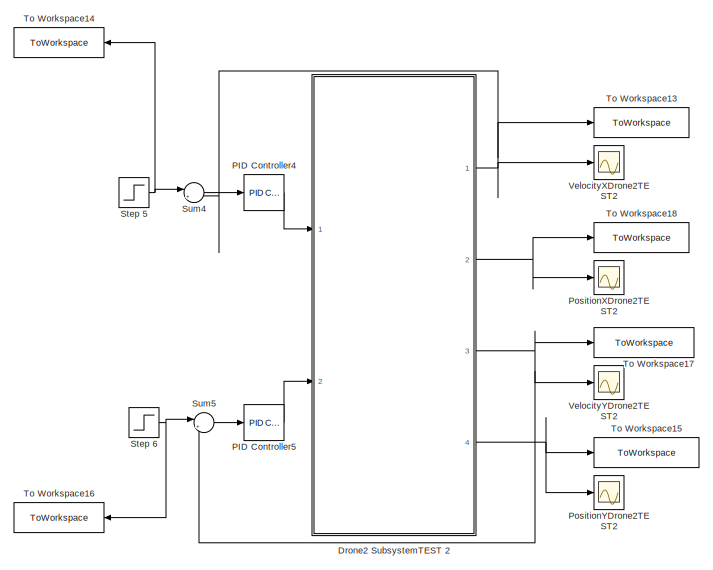
[diagram: root canvas - part 1/3, left side, full height]
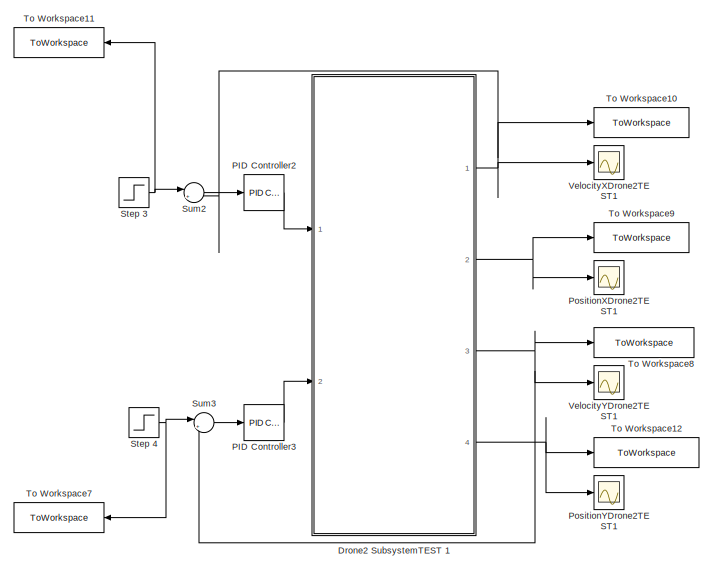
[diagram: root canvas - part 2/3, center side, full height]
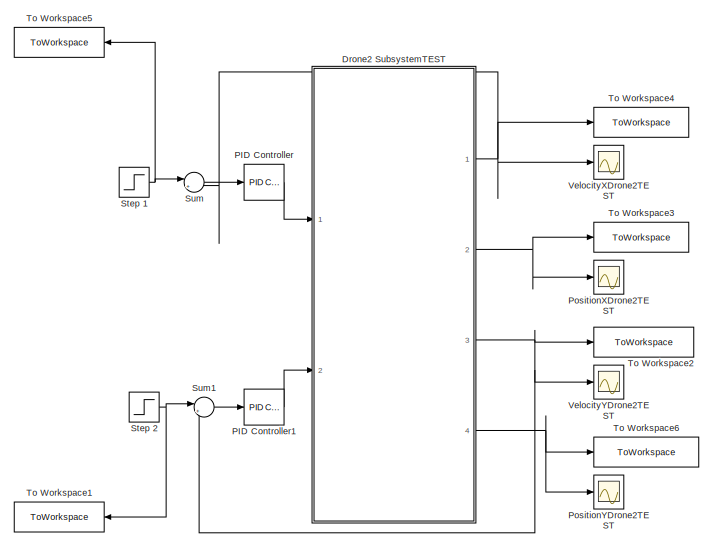
[diagram: root canvas - part 3/3, right side, full height]
MODEL slx_4471106a323d
KIND model
CONFIG AbsTol = auto
CONFIG EnableMultiTasking = off
CONFIG FixedStep = auto
CONFIG MaxStep = auto
CONFIG MinStep = auto
CONFIG RelTol = 1e-3
CONFIG SampleTimeConstraint = Unconstrained
CONFIG Solver = VariableStepAuto
CONFIG SolverName = VariableStepAuto
CONFIG StartTime = 0.0
CONFIG StopTime = 10
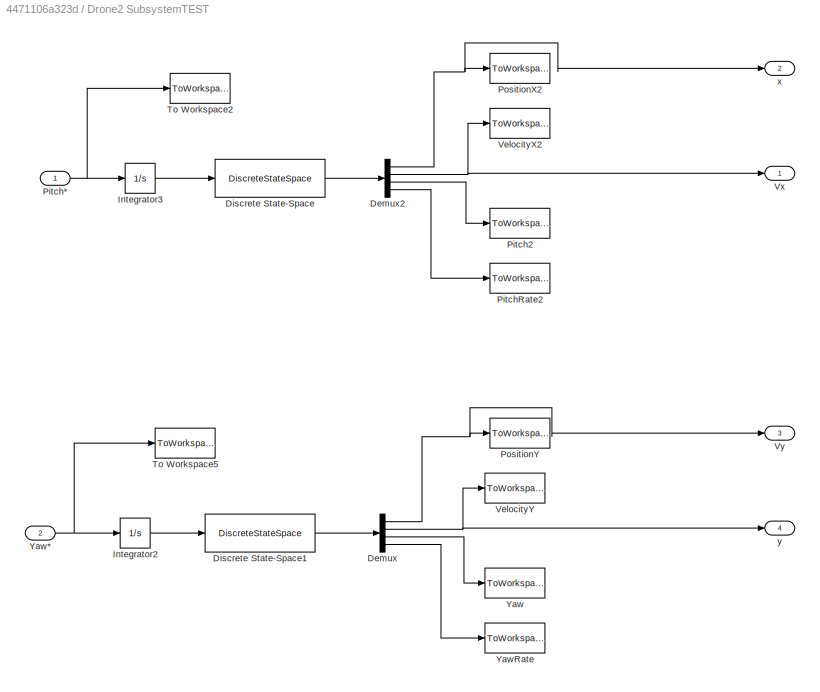
BLOCK [SubSystem] Drone2 SubsystemTEST 
  Commented = on
  Ports = [2, 4]
  RequestExecContextInheritance = off
BLOCK [Demux] Drone2 SubsystemTEST /Demux
  DisplayOption = bar
  Ports = [1, 4]
BLOCK [Demux] Drone2 SubsystemTEST /Demux2
  DisplayOption = bar
  Ports = [1, 4]
BLOCK [DiscreteStateSpace] Drone2 SubsystemTEST /Discrete State-Space
  A = Ax
  B = Bx
  C = Cvx
  D = Dx
  InitialCondition = x0
  SampleTime = Ts
BLOCK [DiscreteStateSpace] Drone2 SubsystemTEST /Discrete State-Space1
  A = Ay
  B = By
  C = Cvy
  D = Dy
  InitialCondition = y0
  SampleTime = Ts
BLOCK [Integrator] Drone2 SubsystemTEST /Integrator2
  Ports = [1, 1]
BLOCK [Integrator] Drone2 SubsystemTEST /Integrator3
  Ports = [1, 1]
BLOCK [Inport] Drone2 SubsystemTEST /Pitch*
  IconDisplay = Port number
BLOCK [ToWorkspace] Drone2 SubsystemTEST /Pitch2
  FixptAsFi = on
  MaxDataPoints = inf
  Ports = [1]
  SampleTime = -1
  Save2DSignal = 3-D array (concatenate along third dimension)
  VariableName = Theta1
BLOCK [ToWorkspace] Drone2 SubsystemTEST /PitchRate2
  FixptAsFi = on
  MaxDataPoints = inf
  Ports = [1]
  SampleTime = -1
  Save2DSignal = 3-D array (concatenate along third dimension)
  VariableName = ThetaDot1
BLOCK [ToWorkspace] Drone2 SubsystemTEST /PositionX2
  FixptAsFi = on
  MaxDataPoints = inf
  Ports = [1]
  SampleTime = -1
  Save2DSignal = 3-D array (concatenate along third dimension)
  VariableName = x
BLOCK [ToWorkspace] Drone2 SubsystemTEST /PositionY
  FixptAsFi = on
  MaxDataPoints = inf
  Ports = [1]
  SampleTime = -1
  Save2DSignal = 3-D array (concatenate along third dimension)
  VariableName = y
BLOCK [ToWorkspace] Drone2 SubsystemTEST /To Workspace2
  FixptAsFi = on
  MaxDataPoints = inf
  Ports = [1]
  SampleTime = -1
  Save2DSignal = 3-D array (concatenate along third dimension)
  VariableName = PitchReference
BLOCK [ToWorkspace] Drone2 SubsystemTEST /To Workspace5
  FixptAsFi = on
  MaxDataPoints = inf
  Ports = [1]
  SampleTime = -1
  Save2DSignal = 3-D array (concatenate along third dimension)
  VariableName = YawReference
BLOCK [ToWorkspace] Drone2 SubsystemTEST /VelocityX2
  FixptAsFi = on
  MaxDataPoints = inf
  Ports = [1]
  SampleTime = -1
  Save2DSignal = 3-D array (concatenate along third dimension)
  VariableName = vx
BLOCK [ToWorkspace] Drone2 SubsystemTEST /VelocityY
  FixptAsFi = on
  MaxDataPoints = inf
  Ports = [1]
  SampleTime = -1
  Save2DSignal = 3-D array (concatenate along third dimension)
  VariableName = vx
BLOCK [Outport] Drone2 SubsystemTEST /Vx
  IconDisplay = Port number
BLOCK [Outport] Drone2 SubsystemTEST /Vy
  IconDisplay = Port number
  Port = 3
BLOCK [ToWorkspace] Drone2 SubsystemTEST /Yaw
  FixptAsFi = on
  MaxDataPoints = inf
  Ports = [1]
  SampleTime = -1
  Save2DSignal = 3-D array (concatenate along third dimension)
  VariableName = Psi
BLOCK [Inport] Drone2 SubsystemTEST /Yaw* 
  IconDisplay = Port number
  Port = 2
BLOCK [ToWorkspace] Drone2 SubsystemTEST /YawRate
  FixptAsFi = on
  MaxDataPoints = inf
  Ports = [1]
  SampleTime = -1
  Save2DSignal = 3-D array (concatenate along third dimension)
  VariableName = PsiDot
BLOCK [Outport] Drone2 SubsystemTEST /x
  IconDisplay = Port number
  Port = 2
BLOCK [Outport] Drone2 SubsystemTEST /y
  IconDisplay = Port number
  Port = 4
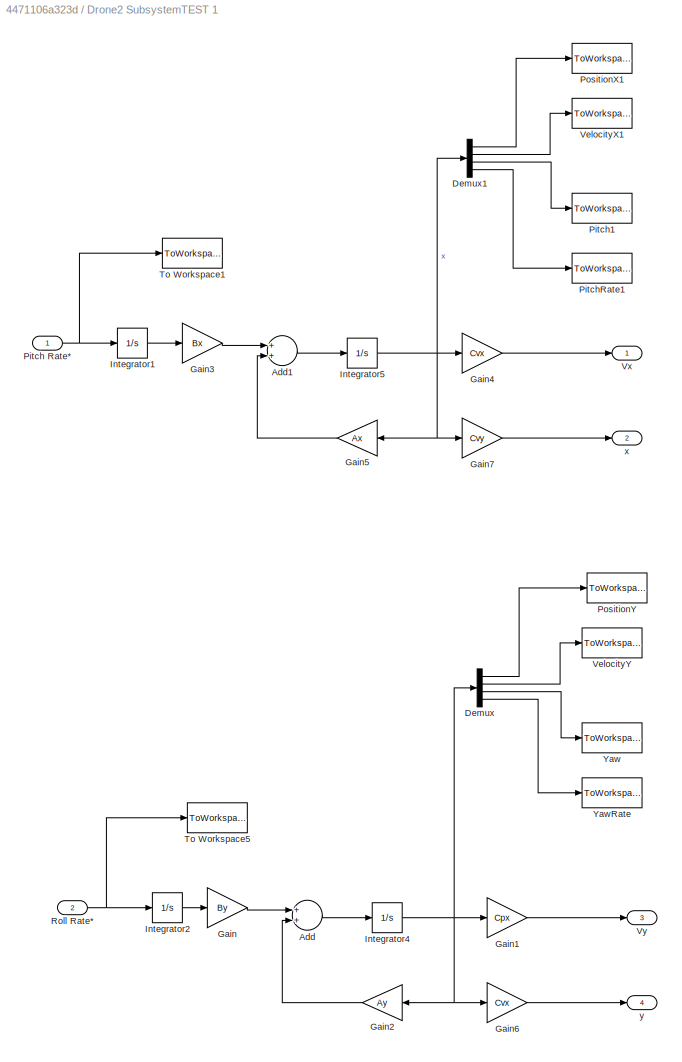
BLOCK [SubSystem] Drone2 SubsystemTEST 1
  Commented = on
  Ports = [2, 4]
  RequestExecContextInheritance = off
BLOCK [Sum] Drone2 SubsystemTEST 1/Add
  InputSameDT = off
  OutDataTypeStr = Inherit: Inherit via internal rule
  Ports = [2, 1]
  SaturateOnIntegerOverflow = off
BLOCK [Sum] Drone2 SubsystemTEST 1/Add1
  InputSameDT = off
  OutDataTypeStr = Inherit: Inherit via internal rule
  Ports = [2, 1]
  SaturateOnIntegerOverflow = off
BLOCK [Demux] Drone2 SubsystemTEST 1/Demux
  DisplayOption = bar
  Ports = [1, 4]
BLOCK [Demux] Drone2 SubsystemTEST 1/Demux1
  DisplayOption = bar
  Ports = [1, 4]
BLOCK [Gain] Drone2 SubsystemTEST 1/Gain
  Gain = By
  Multiplication = Matrix(K*u)
  OutDataTypeStr = Inherit: Inherit via internal rule
  ParamDataTypeStr = Inherit: Inherit via internal rule
  SaturateOnIntegerOverflow = off
BLOCK [Gain] Drone2 SubsystemTEST 1/Gain1
  Gain = Cpx
  Multiplication = Matrix(K*u)
  OutDataTypeStr = Inherit: Inherit via internal rule
  ParamDataTypeStr = Inherit: Inherit via internal rule
  SaturateOnIntegerOverflow = off
BLOCK [Gain] Drone2 SubsystemTEST 1/Gain2
  Gain = Ay
  Multiplication = Matrix(K*u)
  OutDataTypeStr = Inherit: Inherit via internal rule
  ParamDataTypeStr = Inherit: Inherit via internal rule
  SaturateOnIntegerOverflow = off
BLOCK [Gain] Drone2 SubsystemTEST 1/Gain3
  Gain = Bx
  Multiplication = Matrix(K*u)
  OutDataTypeStr = Inherit: Inherit via internal rule
  ParamDataTypeStr = Inherit: Inherit via internal rule
  SaturateOnIntegerOverflow = off
BLOCK [Gain] Drone2 SubsystemTEST 1/Gain4
  Gain = Cvx
  Multiplication = Matrix(K*u)
  OutDataTypeStr = Inherit: Inherit via internal rule
  ParamDataTypeStr = Inherit: Inherit via internal rule
  SaturateOnIntegerOverflow = off
BLOCK [Gain] Drone2 SubsystemTEST 1/Gain5
  Gain = Ax
  Multiplication = Matrix(K*u)
  OutDataTypeStr = Inherit: Inherit via internal rule
  ParamDataTypeStr = Inherit: Inherit via internal rule
  SaturateOnIntegerOverflow = off
BLOCK [Gain] Drone2 SubsystemTEST 1/Gain6
  Gain = Cvx
  Multiplication = Matrix(K*u)
  OutDataTypeStr = Inherit: Inherit via internal rule
  ParamDataTypeStr = Inherit: Inherit via internal rule
  SaturateOnIntegerOverflow = off
BLOCK [Gain] Drone2 SubsystemTEST 1/Gain7
  Gain = Cvy
  Multiplication = Matrix(K*u)
  OutDataTypeStr = Inherit: Inherit via internal rule
  ParamDataTypeStr = Inherit: Inherit via internal rule
  SaturateOnIntegerOverflow = off
BLOCK [Integrator] Drone2 SubsystemTEST 1/Integrator1
  Ports = [1, 1]
BLOCK [Integrator] Drone2 SubsystemTEST 1/Integrator2
  Ports = [1, 1]
BLOCK [Integrator] Drone2 SubsystemTEST 1/Integrator4
  InitialCondition = y0
  Ports = [1, 1]
BLOCK [Integrator] Drone2 SubsystemTEST 1/Integrator5
  InitialCondition = x0
  Ports = [1, 1]
BLOCK [Inport] Drone2 SubsystemTEST 1/Pitch Rate*
  IconDisplay = Port number
BLOCK [ToWorkspace] Drone2 SubsystemTEST 1/Pitch1
  FixptAsFi = on
  MaxDataPoints = inf
  Ports = [1]
  SampleTime = -1
  Save2DSignal = 3-D array (concatenate along third dimension)
  VariableName = Theta1
BLOCK [ToWorkspace] Drone2 SubsystemTEST 1/PitchRate1
  FixptAsFi = on
  MaxDataPoints = inf
  Ports = [1]
  SampleTime = -1
  Save2DSignal = 3-D array (concatenate along third dimension)
  VariableName = ThetaDot1
BLOCK [ToWorkspace] Drone2 SubsystemTEST 1/PositionX1
  FixptAsFi = on
  MaxDataPoints = inf
  Ports = [1]
  SampleTime = -1
  Save2DSignal = 3-D array (concatenate along third dimension)
  VariableName = x
BLOCK [ToWorkspace] Drone2 SubsystemTEST 1/PositionY
  FixptAsFi = on
  MaxDataPoints = inf
  Ports = [1]
  SampleTime = -1
  Save2DSignal = 3-D array (concatenate along third dimension)
  VariableName = y
BLOCK [Inport] Drone2 SubsystemTEST 1/Roll Rate* 
  IconDisplay = Port number
  Port = 2
BLOCK [ToWorkspace] Drone2 SubsystemTEST 1/To Workspace1
  FixptAsFi = on
  MaxDataPoints = inf
  Ports = [1]
  SampleTime = -1
  Save2DSignal = 3-D array (concatenate along third dimension)
  VariableName = PitchReference
BLOCK [ToWorkspace] Drone2 SubsystemTEST 1/To Workspace5
  FixptAsFi = on
  MaxDataPoints = inf
  Ports = [1]
  SampleTime = -1
  Save2DSignal = 3-D array (concatenate along third dimension)
  VariableName = YawReference
BLOCK [ToWorkspace] Drone2 SubsystemTEST 1/VelocityX1
  FixptAsFi = on
  MaxDataPoints = inf
  Ports = [1]
  SampleTime = -1
  Save2DSignal = 3-D array (concatenate along third dimension)
  VariableName = vx1
BLOCK [ToWorkspace] Drone2 SubsystemTEST 1/VelocityY
  FixptAsFi = on
  MaxDataPoints = inf
  Ports = [1]
  SampleTime = -1
  Save2DSignal = 3-D array (concatenate along third dimension)
  VariableName = vx
BLOCK [Outport] Drone2 SubsystemTEST 1/Vx
  IconDisplay = Port number
BLOCK [Outport] Drone2 SubsystemTEST 1/Vy
  IconDisplay = Port number
  Port = 3
BLOCK [ToWorkspace] Drone2 SubsystemTEST 1/Yaw
  FixptAsFi = on
  MaxDataPoints = inf
  Ports = [1]
  SampleTime = -1
  Save2DSignal = 3-D array (concatenate along third dimension)
  VariableName = Psi
BLOCK [ToWorkspace] Drone2 SubsystemTEST 1/YawRate
  FixptAsFi = on
  MaxDataPoints = inf
  Ports = [1]
  SampleTime = -1
  Save2DSignal = 3-D array (concatenate along third dimension)
  VariableName = PsiDot
BLOCK [Outport] Drone2 SubsystemTEST 1/x
  IconDisplay = Port number
  Port = 2
BLOCK [Outport] Drone2 SubsystemTEST 1/y
  IconDisplay = Port number
  Port = 4
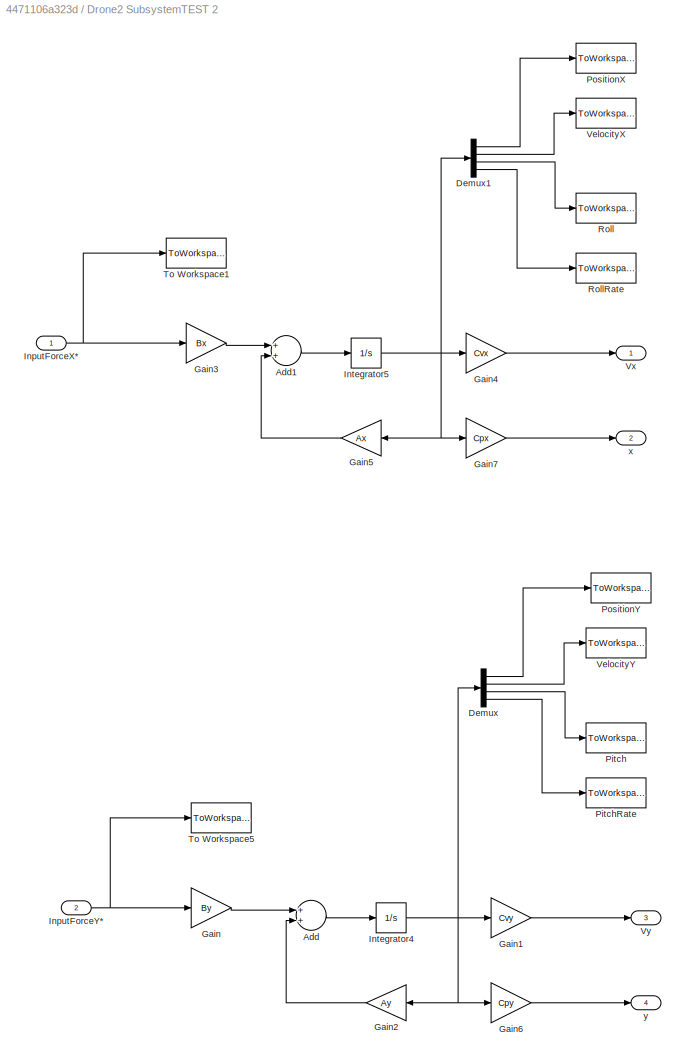
BLOCK [SubSystem] Drone2 SubsystemTEST 2
  Ports = [2, 4]
  RequestExecContextInheritance = off
BLOCK [Sum] Drone2 SubsystemTEST 2/Add
  InputSameDT = off
  OutDataTypeStr = Inherit: Inherit via internal rule
  Ports = [2, 1]
  SaturateOnIntegerOverflow = off
BLOCK [Sum] Drone2 SubsystemTEST 2/Add1
  InputSameDT = off
  OutDataTypeStr = Inherit: Inherit via internal rule
  Ports = [2, 1]
  SaturateOnIntegerOverflow = off
BLOCK [Demux] Drone2 SubsystemTEST 2/Demux
  DisplayOption = bar
  Ports = [1, 4]
BLOCK [Demux] Drone2 SubsystemTEST 2/Demux1
  DisplayOption = bar
  Ports = [1, 4]
BLOCK [Gain] Drone2 SubsystemTEST 2/Gain
  Gain = By
  Multiplication = Matrix(K*u)
  OutDataTypeStr = Inherit: Inherit via internal rule
  ParamDataTypeStr = Inherit: Inherit via internal rule
  SaturateOnIntegerOverflow = off
BLOCK [Gain] Drone2 SubsystemTEST 2/Gain1
  Gain = Cvy
  Multiplication = Matrix(K*u)
  OutDataTypeStr = Inherit: Inherit via internal rule
  ParamDataTypeStr = Inherit: Inherit via internal rule
  SaturateOnIntegerOverflow = off
BLOCK [Gain] Drone2 SubsystemTEST 2/Gain2
  Gain = Ay
  Multiplication = Matrix(K*u)
  OutDataTypeStr = Inherit: Inherit via internal rule
  ParamDataTypeStr = Inherit: Inherit via internal rule
  SaturateOnIntegerOverflow = off
BLOCK [Gain] Drone2 SubsystemTEST 2/Gain3
  Gain = Bx
  Multiplication = Matrix(K*u)
  OutDataTypeStr = Inherit: Inherit via internal rule
  ParamDataTypeStr = Inherit: Inherit via internal rule
  SaturateOnIntegerOverflow = off
BLOCK [Gain] Drone2 SubsystemTEST 2/Gain4
  Gain = Cvx
  Multiplication = Matrix(K*u)
  OutDataTypeStr = Inherit: Inherit via internal rule
  ParamDataTypeStr = Inherit: Inherit via internal rule
  SaturateOnIntegerOverflow = off
BLOCK [Gain] Drone2 SubsystemTEST 2/Gain5
  Gain = Ax
  Multiplication = Matrix(K*u)
  OutDataTypeStr = Inherit: Inherit via internal rule
  ParamDataTypeStr = Inherit: Inherit via internal rule
  SaturateOnIntegerOverflow = off
BLOCK [Gain] Drone2 SubsystemTEST 2/Gain6
  Gain = Cpy
  Multiplication = Matrix(K*u)
  OutDataTypeStr = Inherit: Inherit via internal rule
  ParamDataTypeStr = Inherit: Inherit via internal rule
  SaturateOnIntegerOverflow = off
BLOCK [Gain] Drone2 SubsystemTEST 2/Gain7
  Gain = Cpx
  Multiplication = Matrix(K*u)
  OutDataTypeStr = Inherit: Inherit via internal rule
  ParamDataTypeStr = Inherit: Inherit via internal rule
  SaturateOnIntegerOverflow = off
BLOCK [Inport] Drone2 SubsystemTEST 2/InputForceX*
  IconDisplay = Port number
BLOCK [Inport] Drone2 SubsystemTEST 2/InputForceY* 
  IconDisplay = Port number
  Port = 2
BLOCK [Integrator] Drone2 SubsystemTEST 2/Integrator4
  InitialCondition = Y40
  Ports = [1, 1]
BLOCK [Integrator] Drone2 SubsystemTEST 2/Integrator5
  InitialCondition = X40
  Ports = [1, 1]
BLOCK [ToWorkspace] Drone2 SubsystemTEST 2/Pitch
  FixptAsFi = on
  MaxDataPoints = inf
  Ports = [1]
  SampleTime = -1
  Save2DSignal = 3-D array (concatenate along third dimension)
  VariableName = Theta
BLOCK [ToWorkspace] Drone2 SubsystemTEST 2/PitchRate
  FixptAsFi = on
  MaxDataPoints = inf
  Ports = [1]
  SampleTime = -1
  Save2DSignal = 3-D array (concatenate along third dimension)
  VariableName = ThetaDot
BLOCK [ToWorkspace] Drone2 SubsystemTEST 2/PositionX
  FixptAsFi = on
  MaxDataPoints = inf
  Ports = [1]
  SampleTime = -1
  Save2DSignal = 3-D array (concatenate along third dimension)
  VariableName = x
BLOCK [ToWorkspace] Drone2 SubsystemTEST 2/PositionY
  FixptAsFi = on
  MaxDataPoints = inf
  Ports = [1]
  SampleTime = -1
  Save2DSignal = 3-D array (concatenate along third dimension)
  VariableName = y
BLOCK [ToWorkspace] Drone2 SubsystemTEST 2/Roll
  FixptAsFi = on
  MaxDataPoints = inf
  Ports = [1]
  SampleTime = -1
  Save2DSignal = 3-D array (concatenate along third dimension)
  VariableName = Psi
BLOCK [ToWorkspace] Drone2 SubsystemTEST 2/RollRate
  FixptAsFi = on
  MaxDataPoints = inf
  Ports = [1]
  SampleTime = -1
  Save2DSignal = 3-D array (concatenate along third dimension)
  VariableName = PsiDot
BLOCK [ToWorkspace] Drone2 SubsystemTEST 2/To Workspace1
  FixptAsFi = on
  MaxDataPoints = inf
  Ports = [1]
  SampleTime = -1
  Save2DSignal = 3-D array (concatenate along third dimension)
  VariableName = RollReference
BLOCK [ToWorkspace] Drone2 SubsystemTEST 2/To Workspace5
  FixptAsFi = on
  MaxDataPoints = inf
  Ports = [1]
  SampleTime = -1
  Save2DSignal = 3-D array (concatenate along third dimension)
  VariableName = PitchReference
BLOCK [ToWorkspace] Drone2 SubsystemTEST 2/VelocityX
  FixptAsFi = on
  MaxDataPoints = inf
  Ports = [1]
  SampleTime = -1
  Save2DSignal = 3-D array (concatenate along third dimension)
  VariableName = vx
BLOCK [ToWorkspace] Drone2 SubsystemTEST 2/VelocityY
  FixptAsFi = on
  MaxDataPoints = inf
  Ports = [1]
  SampleTime = -1
  Save2DSignal = 3-D array (concatenate along third dimension)
  VariableName = vy
BLOCK [Outport] Drone2 SubsystemTEST 2/Vx
  IconDisplay = Port number
BLOCK [Outport] Drone2 SubsystemTEST 2/Vy
  IconDisplay = Port number
  Port = 3
BLOCK [Outport] Drone2 SubsystemTEST 2/x
  IconDisplay = Port number
  Port = 2
BLOCK [Outport] Drone2 SubsystemTEST 2/y
  IconDisplay = Port number
  Port = 4
BLOCK [Reference] PID Controller  REF=simulink/Continuous/PID Controller
  Commented = on
  Ports = [1, 1]
  SourceBlock = simulink/Continuous/PID Controller
  SourceProductBaseCode = SL
  SourceProductName = Simulink
  SourceType = PID 1dof
BLOCK [Reference] PID Controller1  REF=simulink/Continuous/PID Controller
  Commented = on
  Ports = [1, 1]
  SourceBlock = simulink/Continuous/PID Controller
  SourceProductBaseCode = SL
  SourceProductName = Simulink
  SourceType = PID 1dof
BLOCK [Reference] PID Controller2  REF=simulink/Continuous/PID Controller
  Commented = on
  Ports = [1, 1]
  SourceBlock = simulink/Continuous/PID Controller
  SourceProductBaseCode = SL
  SourceProductName = Simulink
  SourceType = PID 1dof
BLOCK [Reference] PID Controller3  REF=simulink/Continuous/PID Controller
  Commented = on
  Ports = [1, 1]
  SourceBlock = simulink/Continuous/PID Controller
  SourceProductBaseCode = SL
  SourceProductName = Simulink
  SourceType = PID 1dof
BLOCK [Reference] PID Controller4  REF=simulink/Continuous/PID Controller
  Ports = [1, 1]
  SourceBlock = simulink/Continuous/PID Controller
  SourceProductBaseCode = SL
  SourceProductName = Simulink
  SourceType = PID 1dof
BLOCK [Reference] PID Controller5  REF=simulink/Continuous/PID Controller
  Ports = [1, 1]
  SourceBlock = simulink/Continuous/PID Controller
  SourceProductBaseCode = SL
  SourceProductName = Simulink
  SourceType = PID 1dof
BLOCK [Scope] PositionXDrone2TEST
  Commented = on
  Floating = off
  NumInputPorts = 1
  Ports = [1]
  ScopeSpecificationString = Simulink.scopes.TimeScopeBlockCfg('CurrentConfiguration', extmgr.ConfigurationSet(extmgr.Configuration('Core','General UI',true),extmgr.Configuration('Core','Source UI',true),extmgr.Configuration('Sources','WiredSimulink',true,'DataLoggingVariableName','ScopeData1'),extmgr.Configuration('Visuals','Time Domain',true,'SerializedDisplays',{struct('MinYLimReal','-24.62449','MaxYLimReal','13.84717','YL...<+1459ch>
BLOCK [Scope] PositionXDrone2TEST1
  Commented = on
  Floating = off
  NumInputPorts = 1
  Ports = [1]
  ScopeSpecificationString = Simulink.scopes.TimeScopeBlockCfg('CurrentConfiguration', extmgr.ConfigurationSet(extmgr.Configuration('Core','General UI',true),extmgr.Configuration('Core','Source UI',true),extmgr.Configuration('Sources','WiredSimulink',true,'DataLoggingVariableName','ScopeData4'),extmgr.Configuration('Visuals','Time Domain',true,'SerializedDisplays',{struct('MinYLimReal','-27125007320699100567960256990116263763...<+2978ch>
BLOCK [Scope] PositionXDrone2TEST2
  Floating = off
  NumInputPorts = 1
  Ports = [1]
  ScopeSpecificationString = Simulink.scopes.TimeScopeBlockCfg('CurrentConfiguration', extmgr.ConfigurationSet(extmgr.Configuration('Core','General UI',true),extmgr.Configuration('Core','Source UI',true),extmgr.Configuration('Sources','WiredSimulink',true,'DataLoggingVariableName','ScopeData1'),extmgr.Configuration('Visuals','Time Domain',true,'SerializedDisplays',{struct('MinYLimReal','8.80598','MaxYLimReal','10.13267','YLab...<+1456ch>
BLOCK [Scope] PositionYDrone2TEST
  Commented = on
  Floating = off
  NumInputPorts = 1
  Ports = [1]
  ScopeSpecificationString = Simulink.scopes.TimeScopeBlockCfg('CurrentConfiguration', extmgr.ConfigurationSet(extmgr.Configuration('Core','General UI',true),extmgr.Configuration('Core','Source UI',true),extmgr.Configuration('Sources','WiredSimulink',true,'DataLoggingVariableName','ScopeData2'),extmgr.Configuration('Visuals','Time Domain',true,'SerializedDisplays',{struct('MinYLimReal','-24.62449','MaxYLimReal','13.84717','YL...<+1459ch>
BLOCK [Scope] PositionYDrone2TEST1
  Commented = on
  Floating = off
  NumInputPorts = 1
  Ports = [1]
  ScopeSpecificationString = Simulink.scopes.TimeScopeBlockCfg('CurrentConfiguration', extmgr.ConfigurationSet(extmgr.Configuration('Core','General UI',true),extmgr.Configuration('Core','Source UI',true),extmgr.Configuration('Sources','WiredSimulink',true,'DataLoggingVariableName','ScopeData5'),extmgr.Configuration('Visuals','Time Domain',true,'SerializedDisplays',{struct('MinYLimReal','-49510086433443077219663181431254630511...<+2080ch>
BLOCK [Scope] PositionYDrone2TEST2
  Floating = off
  NumInputPorts = 1
  Ports = [1]
  ScopeSpecificationString = Simulink.scopes.TimeScopeBlockCfg('CurrentConfiguration', extmgr.ConfigurationSet(extmgr.Configuration('Core','General UI',true),extmgr.Configuration('Core','Source UI',true),extmgr.Configuration('Sources','WiredSimulink',true,'DataLoggingVariableName','ScopeData2'),extmgr.Configuration('Visuals','Time Domain',true,'SerializedDisplays',{struct('MinYLimReal','-1.77034','MaxYLimReal','0.1967','YLabe...<+1452ch>
BLOCK [Step] Step 1
  After = -0.1061
  Commented = on
  SampleTime = 0
  Time = 0
BLOCK [Step] Step 2
  After = -0.1061
  Commented = on
  SampleTime = 0
  Time = 0
BLOCK [Step] Step 3
  After = -0.1061
  Commented = on
  SampleTime = 0
  Time = 0
BLOCK [Step] Step 4
  After = -0.1061
  Commented = on
  SampleTime = 0
  Time = 0
BLOCK [Step] Step 5
  After = 0.1061
  SampleTime = 0
  Time = 0
BLOCK [Step] Step 6
  After = 0.1061
  SampleTime = 0
  Time = 0
BLOCK [Sum] Sum
  Commented = on
  IconShape = round
  InputSameDT = off
  Inputs = |+-
  OutDataTypeStr = Inherit: Inherit via internal rule
  Ports = [2, 1]
  SaturateOnIntegerOverflow = off
BLOCK [Sum] Sum1
  Commented = on
  IconShape = round
  InputSameDT = off
  Inputs = |+-
  OutDataTypeStr = Inherit: Inherit via internal rule
  Ports = [2, 1]
  SaturateOnIntegerOverflow = off
BLOCK [Sum] Sum2
  Commented = on
  IconShape = round
  InputSameDT = off
  Inputs = |+-
  OutDataTypeStr = Inherit: Inherit via internal rule
  Ports = [2, 1]
  SaturateOnIntegerOverflow = off
BLOCK [Sum] Sum3
  Commented = on
  IconShape = round
  InputSameDT = off
  Inputs = |+-
  OutDataTypeStr = Inherit: Inherit via internal rule
  Ports = [2, 1]
  SaturateOnIntegerOverflow = off
BLOCK [Sum] Sum4
  IconShape = round
  InputSameDT = off
  Inputs = |+-
  OutDataTypeStr = Inherit: Inherit via internal rule
  Ports = [2, 1]
  SaturateOnIntegerOverflow = off
BLOCK [Sum] Sum5
  IconShape = round
  InputSameDT = off
  Inputs = |+-
  OutDataTypeStr = Inherit: Inherit via internal rule
  Ports = [2, 1]
  SaturateOnIntegerOverflow = off
BLOCK [ToWorkspace] To Workspace1
  Commented = on
  FixptAsFi = on
  MaxDataPoints = inf
  Ports = [1]
  SampleTime = -1
  Save2DSignal = 3-D array (concatenate along third dimension)
  VariableName = VelocityStarY2TEST
BLOCK [ToWorkspace] To Workspace10
  Commented = on
  FixptAsFi = on
  MaxDataPoints = inf
  Ports = [1]
  SampleTime = -1
  Save2DSignal = 3-D array (concatenate along third dimension)
  VariableName = VelocityXDrone2TEST1
BLOCK [ToWorkspace] To Workspace11
  Commented = on
  FixptAsFi = on
  MaxDataPoints = inf
  Ports = [1]
  SampleTime = -1
  Save2DSignal = 3-D array (concatenate along third dimension)
  VariableName = VelocityStarX2TEST1
BLOCK [ToWorkspace] To Workspace12
  Commented = on
  FixptAsFi = on
  MaxDataPoints = inf
  Ports = [1]
  SampleTime = -1
  Save2DSignal = 3-D array (concatenate along third dimension)
  VariableName = PositionYDrone2TEST1
BLOCK [ToWorkspace] To Workspace13
  FixptAsFi = on
  MaxDataPoints = inf
  Ports = [1]
  SampleTime = -1
  Save2DSignal = 3-D array (concatenate along third dimension)
  VariableName = VelocityXDrone2TEST2
BLOCK [ToWorkspace] To Workspace14
  FixptAsFi = on
  MaxDataPoints = inf
  Ports = [1]
  SampleTime = -1
  Save2DSignal = 3-D array (concatenate along third dimension)
  VariableName = VelocityStarX2TEST2
BLOCK [ToWorkspace] To Workspace15
  FixptAsFi = on
  MaxDataPoints = inf
  Ports = [1]
  SampleTime = -1
  Save2DSignal = 3-D array (concatenate along third dimension)
  VariableName = PositionYDrone2TEST2
BLOCK [ToWorkspace] To Workspace16
  FixptAsFi = on
  MaxDataPoints = inf
  Ports = [1]
  SampleTime = -1
  Save2DSignal = 3-D array (concatenate along third dimension)
  VariableName = VelocityStarY2TEST2
BLOCK [ToWorkspace] To Workspace17
  FixptAsFi = on
  MaxDataPoints = inf
  Ports = [1]
  SampleTime = -1
  Save2DSignal = 3-D array (concatenate along third dimension)
  VariableName = VelocityYDrone2TEST2
BLOCK [ToWorkspace] To Workspace18
  FixptAsFi = on
  MaxDataPoints = inf
  Ports = [1]
  SampleTime = -1
  Save2DSignal = 3-D array (concatenate along third dimension)
  VariableName = PositionXDrone2TEST2
BLOCK [ToWorkspace] To Workspace2
  Commented = on
  FixptAsFi = on
  MaxDataPoints = inf
  Ports = [1]
  SampleTime = -1
  Save2DSignal = 3-D array (concatenate along third dimension)
  VariableName = VelocityYDrone2TEST
BLOCK [ToWorkspace] To Workspace3
  Commented = on
  FixptAsFi = on
  MaxDataPoints = inf
  Ports = [1]
  SampleTime = -1
  Save2DSignal = 3-D array (concatenate along third dimension)
  VariableName = PositionXDrone2TEST
BLOCK [ToWorkspace] To Workspace4
  Commented = on
  FixptAsFi = on
  MaxDataPoints = inf
  Ports = [1]
  SampleTime = -1
  Save2DSignal = 3-D array (concatenate along third dimension)
  VariableName = VelocityXDrone2TEST
BLOCK [ToWorkspace] To Workspace5
  Commented = on
  FixptAsFi = on
  MaxDataPoints = inf
  Ports = [1]
  SampleTime = -1
  Save2DSignal = 3-D array (concatenate along third dimension)
  VariableName = VelocityStarX2TEST
BLOCK [ToWorkspace] To Workspace6
  Commented = on
  FixptAsFi = on
  MaxDataPoints = inf
  Ports = [1]
  SampleTime = -1
  Save2DSignal = 3-D array (concatenate along third dimension)
  VariableName = PositionYDrone2TEST
BLOCK [ToWorkspace] To Workspace7
  Commented = on
  FixptAsFi = on
  MaxDataPoints = inf
  Ports = [1]
  SampleTime = -1
  Save2DSignal = 3-D array (concatenate along third dimension)
  VariableName = VelocityStarY2TEST1
BLOCK [ToWorkspace] To Workspace8
  Commented = on
  FixptAsFi = on
  MaxDataPoints = inf
  Ports = [1]
  SampleTime = -1
  Save2DSignal = 3-D array (concatenate along third dimension)
  VariableName = VelocityYDrone2TEST1
BLOCK [ToWorkspace] To Workspace9
  Commented = on
  FixptAsFi = on
  MaxDataPoints = inf
  Ports = [1]
  SampleTime = -1
  Save2DSignal = 3-D array (concatenate along third dimension)
  VariableName = PositionXDrone2TEST1
BLOCK [Scope] VelocityXDrone2TEST
  Commented = on
  Floating = off
  NumInputPorts = 1
  Ports = [1]
  ScopeSpecificationString = Simulink.scopes.TimeScopeBlockCfg('CurrentConfiguration', extmgr.ConfigurationSet(extmgr.Configuration('Core','General UI',true),extmgr.Configuration('Core','Source UI',true),extmgr.Configuration('Sources','WiredSimulink',true,'DataLoggingVariableName','ScopeData3'),extmgr.Configuration('Visuals','Time Domain',true,'SerializedDisplays',{struct('MinYLimReal','-7.12289','MaxYLimReal','-6.60466','YLa...<+1432ch>
BLOCK [Scope] VelocityXDrone2TEST1
  Commented = on
  Floating = off
  NumInputPorts = 1
  Ports = [1]
  ScopeSpecificationString = Simulink.scopes.TimeScopeBlockCfg('CurrentConfiguration', extmgr.ConfigurationSet(extmgr.Configuration('Core','General UI',true),extmgr.Configuration('Core','Source UI',true),extmgr.Configuration('Sources','WiredSimulink',true,'DataLoggingVariableName','ScopeData6'),extmgr.Configuration('Visuals','Time Domain',true,'SerializedDisplays',{struct('MinYLimReal','-11962.1697','MaxYLimReal','1329.01886'...<+1478ch>
BLOCK [Scope] VelocityXDrone2TEST2
  Floating = off
  NumInputPorts = 1
  Ports = [1]
  ScopeSpecificationString = Simulink.scopes.TimeScopeBlockCfg('CurrentConfiguration', extmgr.ConfigurationSet(extmgr.Configuration('Core','General UI',true),extmgr.Configuration('Core','Source UI',true),extmgr.Configuration('Sources','WiredSimulink',true,'DataLoggingVariableName','ScopeData3'),extmgr.Configuration('Visuals','Time Domain',true,'SerializedDisplays',{struct('MinYLimReal','-0.10727','MaxYLimReal','-0.09919','YLa...<+1456ch>
BLOCK [Scope] VelocityYDrone2TEST
  Commented = on
  Floating = off
  NumInputPorts = 1
  Ports = [1]
  ScopeSpecificationString = Simulink.scopes.TimeScopeBlockCfg('CurrentConfiguration', extmgr.ConfigurationSet(extmgr.Configuration('Core','General UI',true),extmgr.Configuration('Core','Source UI',true),extmgr.Configuration('Sources','WiredSimulink',true),extmgr.Configuration('Visuals','Time Domain',true,'SerializedDisplays',{struct('MinYLimReal','-0.10684','MaxYLimReal','-0.09907','YLabelReal','','MinYLimMag','0.00000','Max...<+1393ch>
BLOCK [Scope] VelocityYDrone2TEST1
  Commented = on
  Floating = off
  NumInputPorts = 1
  Ports = [1]
  ScopeSpecificationString = Simulink.scopes.TimeScopeBlockCfg('CurrentConfiguration', extmgr.ConfigurationSet(extmgr.Configuration('Core','General UI',true),extmgr.Configuration('Core','Source UI',true),extmgr.Configuration('Sources','WiredSimulink',true,'DataLoggingVariableName','ScopeData7'),extmgr.Configuration('Visuals','Time Domain',true,'SerializedDisplays',{struct('MinYLimReal','-26257507000022762758943679536514810050...<+2080ch>
BLOCK [Scope] VelocityYDrone2TEST2
  Floating = off
  NumInputPorts = 1
  Ports = [1]
  ScopeSpecificationString = Simulink.scopes.TimeScopeBlockCfg('CurrentConfiguration', extmgr.ConfigurationSet(extmgr.Configuration('Core','General UI',true),extmgr.Configuration('Core','Source UI',true),extmgr.Configuration('Sources','WiredSimulink',true,'DataLoggingVariableName','ScopeData4'),extmgr.Configuration('Visuals','Time Domain',true,'SerializedDisplays',{struct('MinYLimReal','-0.13444','MaxYLimReal','0.14928','YLab...<+1480ch>
NET Drone2 SubsystemTEST /Demux2:1 -> Drone2 SubsystemTEST /PositionX2:1, Drone2 SubsystemTEST /x:1
NET Drone2 SubsystemTEST /Demux2:2 -> Drone2 SubsystemTEST /VelocityX2:1, Drone2 SubsystemTEST /Vx:1
LINE Drone2 SubsystemTEST /Demux2:3 -> Drone2 SubsystemTEST /Pitch2:1
LINE Drone2 SubsystemTEST /Demux2:4 -> Drone2 SubsystemTEST /PitchRate2:1
NET Drone2 SubsystemTEST /Demux:1 -> Drone2 SubsystemTEST /PositionY:1, Drone2 SubsystemTEST /Vy:1
NET Drone2 SubsystemTEST /Demux:2 -> Drone2 SubsystemTEST /VelocityY:1, Drone2 SubsystemTEST /y:1
LINE Drone2 SubsystemTEST /Demux:3 -> Drone2 SubsystemTEST /Yaw:1
LINE Drone2 SubsystemTEST /Demux:4 -> Drone2 SubsystemTEST /YawRate:1
LINE Drone2 SubsystemTEST /Discrete State-Space1:1 -> Drone2 SubsystemTEST /Demux:1
LINE Drone2 SubsystemTEST /Discrete State-Space:1 -> Drone2 SubsystemTEST /Demux2:1
LINE Drone2 SubsystemTEST /Integrator2:1 -> Drone2 SubsystemTEST /Discrete State-Space1:1
LINE Drone2 SubsystemTEST /Integrator3:1 -> Drone2 SubsystemTEST /Discrete State-Space:1
NET Drone2 SubsystemTEST /Pitch*:1 -> Drone2 SubsystemTEST /Integrator3:1, Drone2 SubsystemTEST /To Workspace2:1
NET Drone2 SubsystemTEST /Yaw* :1 -> Drone2 SubsystemTEST /Integrator2:1, Drone2 SubsystemTEST /To Workspace5:1
LINE Drone2 SubsystemTEST 1/Add1:1 -> Drone2 SubsystemTEST 1/Integrator5:1
LINE Drone2 SubsystemTEST 1/Add:1 -> Drone2 SubsystemTEST 1/Integrator4:1
LINE Drone2 SubsystemTEST 1/Demux1:1 -> Drone2 SubsystemTEST 1/PositionX1:1
LINE Drone2 SubsystemTEST 1/Demux1:2 -> Drone2 SubsystemTEST 1/VelocityX1:1
LINE Drone2 SubsystemTEST 1/Demux1:3 -> Drone2 SubsystemTEST 1/Pitch1:1
LINE Drone2 SubsystemTEST 1/Demux1:4 -> Drone2 SubsystemTEST 1/PitchRate1:1
LINE Drone2 SubsystemTEST 1/Demux:1 -> Drone2 SubsystemTEST 1/PositionY:1
LINE Drone2 SubsystemTEST 1/Demux:2 -> Drone2 SubsystemTEST 1/VelocityY:1
LINE Drone2 SubsystemTEST 1/Demux:3 -> Drone2 SubsystemTEST 1/Yaw:1
LINE Drone2 SubsystemTEST 1/Demux:4 -> Drone2 SubsystemTEST 1/YawRate:1
LINE Drone2 SubsystemTEST 1/Gain1:1 -> Drone2 SubsystemTEST 1/Vy:1
LINE Drone2 SubsystemTEST 1/Gain2:1 -> Drone2 SubsystemTEST 1/Add:2
LINE Drone2 SubsystemTEST 1/Gain3:1 -> Drone2 SubsystemTEST 1/Add1:1
LINE Drone2 SubsystemTEST 1/Gain4:1 -> Drone2 SubsystemTEST 1/Vx:1
LINE Drone2 SubsystemTEST 1/Gain5:1 -> Drone2 SubsystemTEST 1/Add1:2
LINE Drone2 SubsystemTEST 1/Gain6:1 -> Drone2 SubsystemTEST 1/y:1
LINE Drone2 SubsystemTEST 1/Gain7:1 -> Drone2 SubsystemTEST 1/x:1
LINE Drone2 SubsystemTEST 1/Gain:1 -> Drone2 SubsystemTEST 1/Add:1
LINE Drone2 SubsystemTEST 1/Integrator1:1 -> Drone2 SubsystemTEST 1/Gain3:1
LINE Drone2 SubsystemTEST 1/Integrator2:1 -> Drone2 SubsystemTEST 1/Gain:1
NET Drone2 SubsystemTEST 1/Integrator4:1 -> Drone2 SubsystemTEST 1/Demux:1, Drone2 SubsystemTEST 1/Gain1:1, Drone2 SubsystemTEST 1/Gain2:1, Drone2 SubsystemTEST 1/Gain6:1
NET Drone2 SubsystemTEST 1/Integrator5:1 -> Drone2 SubsystemTEST 1/Demux1:1, Drone2 SubsystemTEST 1/Gain4:1, Drone2 SubsystemTEST 1/Gain5:1, Drone2 SubsystemTEST 1/Gain7:1
NET Drone2 SubsystemTEST 1/Pitch Rate*:1 -> Drone2 SubsystemTEST 1/Integrator1:1, Drone2 SubsystemTEST 1/To Workspace1:1
NET Drone2 SubsystemTEST 1/Roll Rate* :1 -> Drone2 SubsystemTEST 1/Integrator2:1, Drone2 SubsystemTEST 1/To Workspace5:1
NET Drone2 SubsystemTEST 1:1 -> Sum2:2, To Workspace10:1, VelocityXDrone2TEST1:1
NET Drone2 SubsystemTEST 1:2 -> PositionXDrone2TEST1:1, To Workspace9:1
NET Drone2 SubsystemTEST 1:3 -> Sum3:2, To Workspace8:1, VelocityYDrone2TEST1:1
NET Drone2 SubsystemTEST 1:4 -> PositionYDrone2TEST1:1, To Workspace12:1
LINE Drone2 SubsystemTEST 2/Add1:1 -> Drone2 SubsystemTEST 2/Integrator5:1
LINE Drone2 SubsystemTEST 2/Add:1 -> Drone2 SubsystemTEST 2/Integrator4:1
LINE Drone2 SubsystemTEST 2/Demux1:1 -> Drone2 SubsystemTEST 2/PositionX:1
LINE Drone2 SubsystemTEST 2/Demux1:2 -> Drone2 SubsystemTEST 2/VelocityX:1
LINE Drone2 SubsystemTEST 2/Demux1:3 -> Drone2 SubsystemTEST 2/Roll:1
LINE Drone2 SubsystemTEST 2/Demux1:4 -> Drone2 SubsystemTEST 2/RollRate:1
LINE Drone2 SubsystemTEST 2/Demux:1 -> Drone2 SubsystemTEST 2/PositionY:1
LINE Drone2 SubsystemTEST 2/Demux:2 -> Drone2 SubsystemTEST 2/VelocityY:1
LINE Drone2 SubsystemTEST 2/Demux:3 -> Drone2 SubsystemTEST 2/Pitch:1
LINE Drone2 SubsystemTEST 2/Demux:4 -> Drone2 SubsystemTEST 2/PitchRate:1
LINE Drone2 SubsystemTEST 2/Gain1:1 -> Drone2 SubsystemTEST 2/Vy:1
LINE Drone2 SubsystemTEST 2/Gain2:1 -> Drone2 SubsystemTEST 2/Add:2
LINE Drone2 SubsystemTEST 2/Gain3:1 -> Drone2 SubsystemTEST 2/Add1:1
LINE Drone2 SubsystemTEST 2/Gain4:1 -> Drone2 SubsystemTEST 2/Vx:1
LINE Drone2 SubsystemTEST 2/Gain5:1 -> Drone2 SubsystemTEST 2/Add1:2
LINE Drone2 SubsystemTEST 2/Gain6:1 -> Drone2 SubsystemTEST 2/y:1
LINE Drone2 SubsystemTEST 2/Gain7:1 -> Drone2 SubsystemTEST 2/x:1
LINE Drone2 SubsystemTEST 2/Gain:1 -> Drone2 SubsystemTEST 2/Add:1
NET Drone2 SubsystemTEST 2/InputForceX*:1 -> Drone2 SubsystemTEST 2/Gain3:1, Drone2 SubsystemTEST 2/To Workspace1:1
NET Drone2 SubsystemTEST 2/InputForceY* :1 -> Drone2 SubsystemTEST 2/Gain:1, Drone2 SubsystemTEST 2/To Workspace5:1
NET Drone2 SubsystemTEST 2/Integrator4:1 -> Drone2 SubsystemTEST 2/Demux:1, Drone2 SubsystemTEST 2/Gain1:1, Drone2 SubsystemTEST 2/Gain2:1, Drone2 SubsystemTEST 2/Gain6:1
NET Drone2 SubsystemTEST 2/Integrator5:1 -> Drone2 SubsystemTEST 2/Demux1:1, Drone2 SubsystemTEST 2/Gain4:1, Drone2 SubsystemTEST 2/Gain5:1, Drone2 SubsystemTEST 2/Gain7:1
NET Drone2 SubsystemTEST 2:1 -> Sum4:2, To Workspace13:1, VelocityXDrone2TEST2:1
NET Drone2 SubsystemTEST 2:2 -> PositionXDrone2TEST2:1, To Workspace18:1
NET Drone2 SubsystemTEST 2:3 -> Sum5:2, To Workspace17:1, VelocityYDrone2TEST2:1
NET Drone2 SubsystemTEST 2:4 -> PositionYDrone2TEST2:1, To Workspace15:1
NET Drone2 SubsystemTEST :1 -> Sum:2, To Workspace4:1, VelocityXDrone2TEST:1
NET Drone2 SubsystemTEST :2 -> PositionXDrone2TEST:1, To Workspace3:1
NET Drone2 SubsystemTEST :3 -> Sum1:2, To Workspace2:1, VelocityYDrone2TEST:1
NET Drone2 SubsystemTEST :4 -> PositionYDrone2TEST:1, To Workspace6:1
LINE PID Controller1:1 -> Drone2 SubsystemTEST :2
LINE PID Controller2:1 -> Drone2 SubsystemTEST 1:1
LINE PID Controller3:1 -> Drone2 SubsystemTEST 1:2
LINE PID Controller4:1 -> Drone2 SubsystemTEST 2:1
LINE PID Controller5:1 -> Drone2 SubsystemTEST 2:2
LINE PID Controller:1 -> Drone2 SubsystemTEST :1
NET Step 1:1 -> Sum:1, To Workspace5:1
NET Step 2:1 -> Sum1:1, To Workspace1:1
NET Step 3:1 -> Sum2:1, To Workspace11:1
NET Step 4:1 -> Sum3:1, To Workspace7:1
NET Step 5:1 -> Sum4:1, To Workspace14:1
NET Step 6:1 -> Sum5:1, To Workspace16:1
LINE Sum1:1 -> PID Controller1:1
LINE Sum2:1 -> PID Controller2:1
LINE Sum3:1 -> PID Controller3:1
LINE Sum4:1 -> PID Controller4:1
LINE Sum5:1 -> PID Controller5:1
LINE Sum:1 -> PID Controller:1
note: NET lines group one-source signal fan-out (src -> all destinations, sorted); 1:1 wires keep LINE
